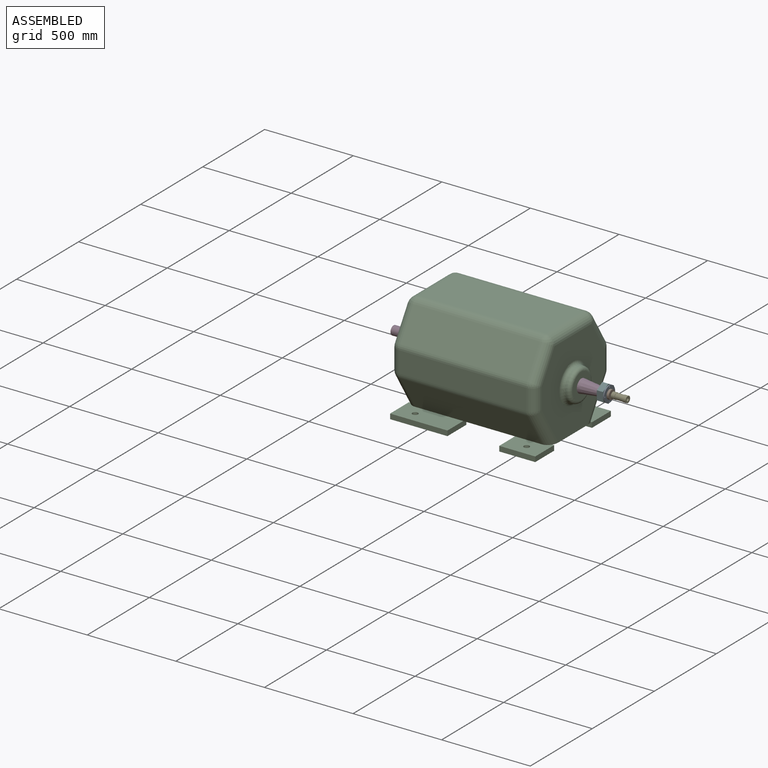
[diagram: assembled view]
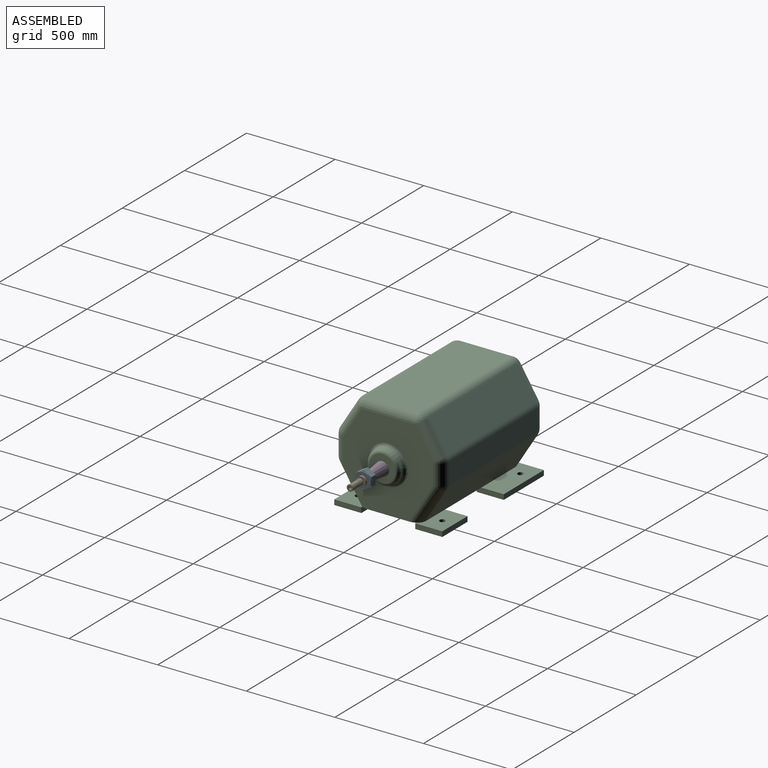
[diagram: assembled view, second angle]
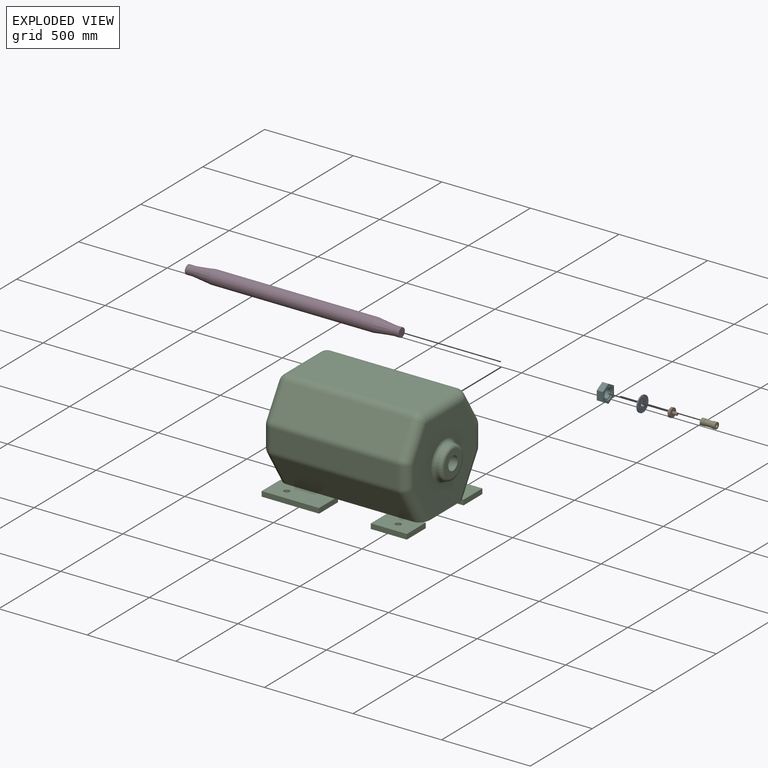
[diagram: exploded view]
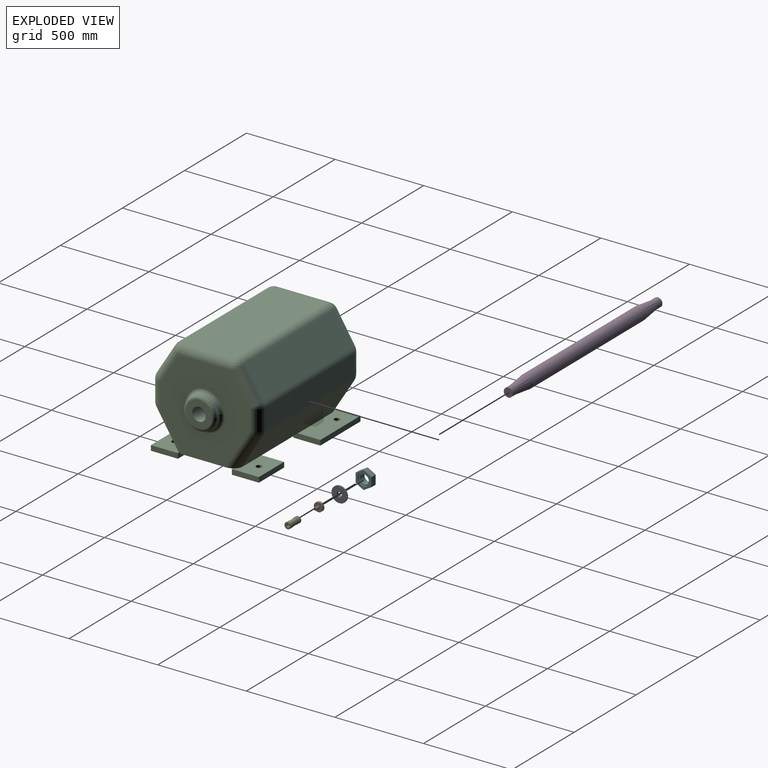
[diagram: exploded view, second angle]
ASSEMBLY  parts=6 mates=4
PART A: 15 faces, bbox 11.1x88.9x88.9 mm
  f0: cylinder r=31.75mm len=63.5mm, axis (1,0,0), area 798.1mm2, adj f4,f11
  f1: plane 61.98x61.98mm, normal (-1,0,0), area 2448.6mm2, adj f9,f11,f12,f13,f14
  f2: cylinder r=44.45mm len=88.9mm, axis (-1,0,0), area 1773.5mm2, adj f3,f4
  f3: plane 88.9x88.9mm, normal (1,0,0), area 5366.7mm2, adj f2,f5,f6,f7,f8,f10,f12,f13
  f4: plane 88.9x88.9mm, normal (-1,0,0), area 2896.8mm2, adj f0,f2,f5,f6,f7,f8
  f5: cylinder r=3.38mm len=6.76mm, axis (1,0,0), area 134.8mm2, adj f3,f4
  f6: cylinder r=3.38mm len=6.76mm, axis (1,0,0), area 134.8mm2, adj f3,f4
  f7: cylinder r=3.38mm len=6.76mm, axis (1,0,0), area 134.8mm2, adj f3,f4
  f8: cylinder r=3.38mm len=6.76mm, axis (1,0,0), area 134.8mm2, adj f3,f4
  f9: cylinder r=12.7mm len=25.4mm, axis (1,0,0), area 765.1mm2, adj f1,f10
  f10: cone r=12.7mm half-angle=45deg, axis (1,0,0), area 182.3mm2, adj f3,f9
  f11: cone r=31.75mm half-angle=45deg, axis (1,0,0), area 212.4mm2, adj f0,f1
  f12: cylinder r=2.55mm len=11.11mm, axis (1,0,0), area 178.2mm2, adj f1,f3
  f13: cylinder r=2.55mm len=11.11mm, axis (1,0,0), area 178.2mm2, adj f1,f3
  f14: cylinder r=2.55mm len=11.11mm, axis (1,0,0), area 178.2mm2, adj f1,f3
PART B: 7 faces, bbox 47.8x50.8x50.8 mm
  f0: cylinder r=12.7mm len=25.4mm, axis (1,0,0), area 770.2mm2, adj f1,f4
  f1: plane 25.4x25.4mm, normal (-1,0,0), area 506.7mm2, adj f0
  f2: cylinder r=25.4mm len=50.8mm, axis (-1,0,0), area 2026.8mm2, adj f3,f4
  f3: plane 50.8x50.8mm, normal (1,0,0), area 1828.9mm2, adj f2,f5
  f4: plane 50.8x50.8mm, normal (-1,0,0), area 1520.1mm2, adj f0,f2
  f5: cylinder r=7.94mm len=25.4mm, axis (-1,0,0), area 1266.8mm2, adj f3,f6
  f6: plane 15.88x15.88mm, normal (1,0,0), area 197.9mm2, adj f5
PART C: 79 faces, bbox 914.4x609.6x582.7 mm
  f0: plane 203.2x152.4mm, normal (0,0,1), area 25565.3mm2, adj f1,f2,f3,f4,f5,f13,f19
  f1: plane 152.4x28.7mm, normal (1,0,0), area 4374.2mm2, adj f0,f2,f5,f6
  f2: plane 203.2x28.7mm, normal (0,1,0), area 5832.2mm2, adj f0,f1,f3,f6
  f3: plane 152.4x28.7mm, normal (-1,0,0), area 4374.2mm2, adj f0,f2,f5,f6,f7
  f4: cylinder r=15.88mm len=31.75mm, axis (0,0,-1), area 2862.9mm2, adj f0,f6
  f5: plane 203.2x28.7mm, normal (0,-1,0), area 5832.2mm2, adj f0,f1,f3,f6,f7
  f6: plane 203.2x152.4mm, normal (0,0,-1), area 30175.9mm2, adj f1,f2,f3,f4,f5
  f7: plane 819.15x355.6mm, normal (0,0,-1), area 264105.8mm2, adj f3,f5,f8,f9,f13,f15,f17,f19
  f8: plane 508x503.17mm, normal (1,0,0), area 169753.7mm2, adj f7,f19,f24,f29,f34,f39,f44,f45
  f9: plane 508x503.17mm, normal (-1,0,0), area 169753.7mm2, adj f7,f17,f22,f27,f32,f37,f42,f43
  f10: plane 717.55x118.44mm, normal (0,1,0), area 84983.4mm2, adj f18,f22,f23,f24
  f11: plane 717.55x118.44mm, normal (0,-1,0), area 84983.4mm2, adj f38,f43,f44,f48
  f12: plane 717.55x299.29mm, normal (0,0,1), area 214754.4mm2, adj f28,f32,f33,f34
  f13: plane 717.55x190.85mm, normal (0,0.85,-0.53), area 161487.4mm2, adj f0,f7,f17,f18,f19,f76
  f14: plane 717.55x166.97mm, normal (0,0.85,0.53), area 141284.2mm2, adj f23,f27,f28,f29
  f15: plane 717.55x190.85mm, normal (0,-0.85,-0.53), area 161487.4mm2, adj f7,f42,f45,f48,f62,f69
  f16: plane 717.55x166.97mm, normal (0,-0.85,0.53), area 141284.2mm2, adj f33,f37,f38,f39
  f17: cylinder r=50.8mm len=244.69mm, axis (0,-0.53,-0.85), area 18879.1mm2, adj f7,f9,f13,f20,f76
  f18: cylinder r=50.8mm len=717.55mm, axis (1,0,0), area 20361.8mm2, adj f10,f13,f20,f21
  f19: cylinder r=50.8mm len=244.69mm, axis (0,-0.53,-0.85), area 18879.1mm2, adj f0,f7,f8,f13,f21
  f20: sphere r=50.8mm, area 1441.5mm2, adj f17,f18,f22
  f21: sphere r=50.8mm, area 1441.5mm2, adj f18,f19,f24
  f22: cylinder r=50.8mm len=118.44mm, axis (0,0,-1), area 9450.7mm2, adj f9,f10,f20,f25
  f23: cylinder r=50.8mm len=717.55mm, axis (1,0,0), area 20361.8mm2, adj f10,f14,f25,f26
  f24: cylinder r=50.8mm len=118.44mm, axis (0,0,-1), area 9450.7mm2, adj f8,f10,f21,f26
  f25: sphere r=50.8mm, area 1441.5mm2, adj f22,f23,f27
  f26: sphere r=50.8mm, area 1441.5mm2, adj f23,f24,f29
  f27: cylinder r=50.8mm len=193.89mm, axis (0,-0.53,0.85), area 15711.8mm2, adj f9,f14,f25,f30
  f28: cylinder r=50.8mm len=717.55mm, axis (-1,0,0), area 36896.1mm2, adj f12,f14,f30,f31
  f29: cylinder r=50.8mm len=193.89mm, axis (0,-0.53,0.85), area 15711.8mm2, adj f8,f14,f26,f31
  f30: sphere r=50.8mm, area 2612.1mm2, adj f27,f28,f32
  f31: sphere r=50.8mm, area 2612.1mm2, adj f28,f29,f34
  f32: cylinder r=50.8mm len=299.29mm, axis (0,1,0), area 23882.2mm2, adj f9,f12,f30,f35
  f33: cylinder r=50.8mm len=717.55mm, axis (-1,0,0), area 36896.1mm2, adj f12,f16,f35,f36
  f34: cylinder r=50.8mm len=299.29mm, axis (0,1,0), area 23882.2mm2, adj f8,f12,f31,f36
  f35: sphere r=50.8mm, area 2612.1mm2, adj f32,f33,f37
  f36: sphere r=50.8mm, area 2612.1mm2, adj f33,f34,f39
  f37: cylinder r=50.8mm len=193.89mm, axis (0,0.53,0.85), area 15711.8mm2, adj f9,f16,f35,f40
  f38: cylinder r=50.8mm len=717.55mm, axis (-1,0,0), area 20361.8mm2, adj f11,f16,f40,f41
  f39: cylinder r=50.8mm len=193.89mm, axis (0,0.53,0.85), area 15711.8mm2, adj f8,f16,f36,f41
  f40: sphere r=50.8mm, area 1441.5mm2, adj f37,f38,f43
  f41: sphere r=50.8mm, area 1441.5mm2, adj f38,f39,f44
  f42: cylinder r=50.8mm len=244.69mm, axis (0,0.53,-0.85), area 18879.1mm2, adj f7,f9,f15,f46,f69
  f43: cylinder r=50.8mm len=118.44mm, axis (0,0,1), area 9450.7mm2, adj f9,f11,f40,f46
  f44: cylinder r=50.8mm len=118.44mm, axis (0,0,1), area 9450.7mm2, adj f8,f11,f41,f47
  f45: cylinder r=50.8mm len=244.69mm, axis (0,0.53,-0.85), area 18879.1mm2, adj f7,f8,f15,f47,f62
  f46: sphere r=50.8mm, area 1441.5mm2, adj f42,f43,f48
  f47: sphere r=50.8mm, area 1441.5mm2, adj f44,f45,f48
  f48: cylinder r=50.8mm len=717.55mm, axis (-1,0,0), area 20361.8mm2, adj f11,f15,f46,f47
  f49: cylinder r=92.08mm len=184.15mm, axis (-1,0,0), area 5510.4mm2, adj f55,f56
  f50: plane 146.05x146.05mm, normal (1,0,0), area 12192.6mm2, adj f56,f78
  f51: cylinder r=92.08mm len=184.15mm, axis (1,0,0), area 5510.4mm2, adj f53,f54
  f52: plane 146.05x146.05mm, normal (-1,0,0), area 12192.6mm2, adj f54,f78
  f53: torus R=111.12mm, axis (-1,0,0), area 18613.1mm2, adj f9,f51
  f54: torus R=73.03mm, axis (-1,0,0), area 16010mm2, adj f51,f52
  f55: torus R=111.12mm, axis (-1,0,0), area 18613.1mm2, adj f8,f49
  f56: torus R=73.03mm, axis (1,0,0), area 16010mm2, adj f49,f50
  f57: plane 152.4x28.7mm, normal (1,0,0), area 4374.2mm2, adj f58,f61,f62,f63
  f58: plane 203.2x28.7mm, normal (0,1,0), area 5832.2mm2, adj f7,f57,f59,f62,f63
  f59: plane 152.4x28.7mm, normal (-1,0,0), area 4374.2mm2, adj f7,f58,f61,f62,f63
  f60: cylinder r=15.88mm len=31.75mm, axis (0,0,-1), area 2862.9mm2, adj f62,f63
  f61: plane 203.2x28.7mm, normal (0,-1,0), area 5832.2mm2, adj f57,f59,f62,f63
  f62: plane 203.2x152.4mm, normal (0,0,1), area 25565.3mm2, adj f15,f45,f57,f58,f59,f60,f61
  f63: plane 203.2x152.4mm, normal (0,0,-1), area 30175.9mm2, adj f57,f58,f59,f60,f61
  f64: plane 152.4x28.7mm, normal (1,0,0), area 4374.2mm2, adj f7,f65,f68,f69,f70
  f65: plane 323.85x28.7mm, normal (0,1,0), area 9295.1mm2, adj f7,f64,f66,f69,f70
  f66: plane 152.4x28.7mm, normal (-1,0,0), area 4374.2mm2, adj f65,f68,f69,f70
  f67: cylinder r=15.88mm len=31.75mm, axis (0,0,-1), area 2862.9mm2, adj f69,f70
  f68: plane 323.85x28.7mm, normal (0,-1,0), area 9295.1mm2, adj f64,f66,f69,f70
  f69: plane 323.85x152.4mm, normal (0,0,1), area 40887.9mm2, adj f15,f42,f64,f65,f66,f67,f68
  f70: plane 323.85x152.4mm, normal (0,0,-1), area 48563mm2, adj f64,f65,f66,f67,f68
  f71: plane 152.4x28.7mm, normal (-1,0,0), area 4374.2mm2, adj f72,f75,f76,f77
  f72: plane 323.85x28.7mm, normal (0,-1,0), area 9295.1mm2, adj f7,f71,f73,f76,f77
  f73: plane 152.4x28.7mm, normal (1,0,0), area 4374.2mm2, adj f7,f72,f75,f76,f77
  f74: cylinder r=15.88mm len=31.75mm, axis (0,0,-1), area 2862.9mm2, adj f76,f77
  f75: plane 323.85x28.7mm, normal (0,1,0), area 9295.1mm2, adj f71,f73,f76,f77
  f76: plane 323.85x152.4mm, normal (0,0,1), area 40887.9mm2, adj f13,f17,f71,f72,f73,f74,f75
  f77: plane 323.85x152.4mm, normal (0,0,-1), area 48563mm2, adj f71,f72,f73,f74,f75
  f78: cylinder r=38.1mm len=914.4mm, axis (1,0,0), area 218897.6mm2, adj f50,f52
PART D: 7 faces, bbox 1206.5x76.2x76.2 mm
  f0: cylinder r=38.1mm len=914.4mm, axis (-1,0,0), area 218897.6mm2, adj f3,f6
  f1: cylinder r=25.4mm len=50.8mm, axis (-1,0,0), area 6080.5mm2, adj f2,f3
  f2: plane 50.8x50.8mm, normal (1,0,0), area 2026.8mm2, adj f1
  f3: cone r=38.1mm half-angle=6.7deg, axis (-1,0,0), area 21683.6mm2, adj f0,f1
  f4: cylinder r=25.4mm len=50.8mm, axis (1,0,0), area 6080.5mm2, adj f5,f6
  f5: plane 50.8x50.8mm, normal (-1,0,0), area 2026.8mm2, adj f4
  f6: cone r=38.1mm half-angle=6.7deg, axis (1,0,0), area 21683.6mm2, adj f0,f4
PART E: 10 faces, bbox 84.1x36.1x36.1 mm
  f0: cylinder r=9mm len=84.07mm, axis (1,0,0), area 4738.5mm2, adj f3,f4,f8,f9
  f1: cylinder r=18.03mm len=36.07mm, axis (-1,0,0), area 2409.7mm2, adj f4,f5,f9
  f2: cylinder r=18.03mm len=36.07mm, axis (-1,0,0), area 2409.7mm2, adj f3,f7,f8
  f3: plane 36.07x36.07mm, normal (-1,0,0), area 767.3mm2, adj f0,f2
  f4: plane 36.07x36.07mm, normal (1,0,0), area 767.3mm2, adj f0,f1
  f5: plane 36.07x36.07mm, normal (-1,0,0), area 165.4mm2, adj f1,f6
  f6: cylinder r=16.51mm len=41.4mm, axis (-1,0,0), area 4294.9mm2, adj f5,f7
  f7: plane 36.07x36.07mm, normal (1,0,0), area 165.4mm2, adj f2,f6
  f8: cylinder r=1.59mm len=9.18mm, axis (0,0,1), area 90.5mm2, adj f0,f2
  f9: cylinder r=1.59mm len=9.18mm, axis (0,0,1), area 90.5mm2, adj f0,f1
PART F: 22 faces, bbox 44.5x88.9x102.7 mm
  f0: plane 63.5x63.5mm, normal (1,0,0), area 1140.1mm2, adj f8,f11
  f1: plane 63.5x63.5mm, normal (-1,0,0), area 1140.1mm2, adj f8,f9
  f2: plane 51.33x34.8mm, normal (0,-1,0), area 1786.1mm2, adj f3,f7,f10,f12
  f3: plane 44.45x34.8mm, normal (0,-0.5,-0.87), area 1786.1mm2, adj f2,f4,f10,f12
  f4: plane 44.45x34.8mm, normal (0,0.5,-0.87), area 1786.1mm2, adj f3,f5,f10,f12
  f5: plane 51.33x34.8mm, normal (0,1,0), area 1786.1mm2, adj f4,f6,f10,f12
  f6: plane 44.45x34.8mm, normal (0,0.5,0.87), area 1786.1mm2, adj f5,f7,f10,f12
  f7: plane 44.45x34.8mm, normal (0,-0.5,0.87), area 1786.1mm2, adj f2,f6,f10,f12
  f8: cylinder r=25.4mm len=50.8mm, axis (-1,0,0), area 6080.5mm2, adj f0,f1
  f9: cylinder r=31.75mm len=63.5mm, axis (-1,0,0), area 1925.5mm2, adj f1,f10
  f10: plane 102.65x88.9mm, normal (-1,0,0), area 3677.5mm2, adj f2,f3,f4,f5,f6,f7,f9
  f11: cylinder r=31.75mm len=63.5mm, axis (-1,0,0), area 1114.8mm2, adj f0,f13
  f12: plane 102.65x88.9mm, normal (1,0,0), area 3441.7mm2, adj f2,f3,f4,f5,f6,f7,f13,f15
  f13: cone r=31.75mm half-angle=45deg, axis (1,0,0), area 217.6mm2, adj f11,f12
  f14: cone r=0mm half-angle=59deg, axis (1,0,0), area 23.9mm2, adj f15
  f15: cylinder r=2.55mm len=19.05mm, axis (1,0,0), area 305.5mm2, adj f12,f14
  f16: cone r=0mm half-angle=59deg, axis (1,0,0), area 23.9mm2, adj f17
  f17: cylinder r=2.55mm len=19.05mm, axis (1,0,0), area 305.5mm2, adj f12,f16
  f18: cone r=0mm half-angle=59deg, axis (1,0,0), area 23.9mm2, adj f19
  f19: cylinder r=2.55mm len=19.05mm, axis (1,0,0), area 305.5mm2, adj f12,f18
  f20: cone r=0mm half-angle=59deg, axis (1,0,0), area 23.9mm2, adj f21
  f21: cylinder r=2.55mm len=19.05mm, axis (1,0,0), area 305.5mm2, adj f12,f20
PLACE A t=(296.67,0,311.15)mm
PLACE B t=(296.67,0,311.15)mm
PLACE C t=(0,0,25.4)mm
PLACE D t=(-268.48,0,311.15)mm
PLACE E t=(408.56,0,311.15)mm
PLACE F t=(296.67,0,311.15)mm
MATE fastened F.f8 <-> D.f0  axis (-1,0,0) through (334.77,0,311.15)mm
MATE fastened E.f0 <-> B.f0  axis (-1,0,0) through (366.52,0,311.15)mm
MATE fastened B.f0 <-> A.f0  axis (-1,0,0) through (347.47,0,311.15)mm
MATE fastened A.f0 <-> F.f8  axis (-1,0,0) through (341.12,0,311.15)mm
